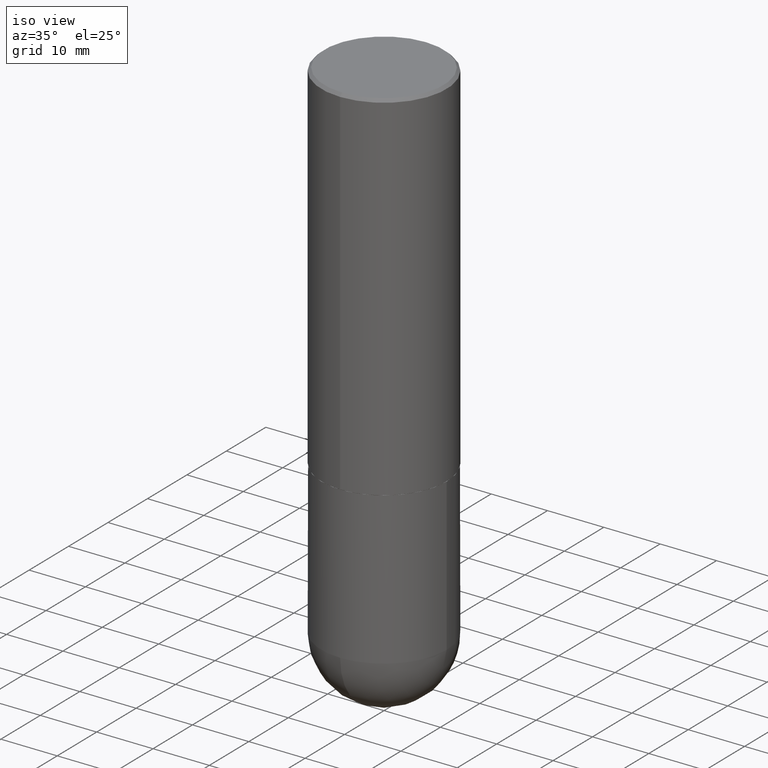
[diagram: clean part render]
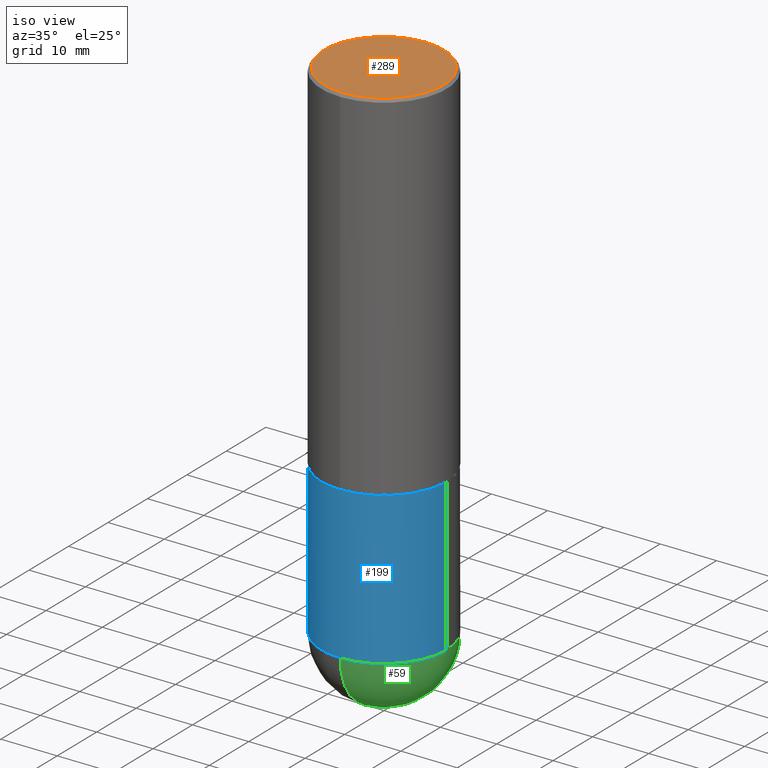
[diagram: same view with three faces highlighted in distinct colors, each labeled with its STEP entity id]
A machine part, iso view with three faces highlighted in distinct colors.
Their STEP definitions:

[orange] entity #289 — the highlighted planar face has unit normal (0, -0, -1).
#6 = FACE_OUTER_BOUND ( 'NONE', #88, .T. ) ;
#14 = CARTESIAN_POINT ( 'NONE',  ( -2.932862894047327755E-15, -0.4174999999999996492, 1.722209210515538921E-15 ) ) ;
#18 = AXIS2_PLACEMENT_3D ( 'NONE', #37, #70, #102 ) ;
#37 = CARTESIAN_POINT ( 'NONE',  ( 2.915386917934013512E-15, 0.4174999999999996492, -1.325336566064474689E-15 ) ) ;
#49 = ORIENTED_EDGE ( 'NONE', *, *, #385, .T. ) ;
#67 = AXIS2_PLACEMENT_3D ( 'NONE', #307, #127, #376 ) ;
#70 = DIRECTION ( 'NONE',  ( 2.445579214634028631E-29, -3.491323227660273177E-15, -1.000000000000000000 ) ) ;
#79 = ORIENTED_EDGE ( 'NONE', *, *, #344, .T. ) ;
#88 = EDGE_LOOP ( 'NONE', ( #49, #79 ) ) ;
#90 = AXIS2_PLACEMENT_3D ( 'NONE', #343, #93, #314 ) ;
#93 = DIRECTION ( 'NONE',  ( -2.445579214634029192E-29, 3.491323227660272783E-15, 1.000000000000000000 ) ) ;
#102 = DIRECTION ( 'NONE',  ( 6.982962677686265922E-15, 1.000000000000000000, -3.491323227660273177E-15 ) ) ;
#106 = CIRCLE ( 'NONE', #90, 0.4174999999999996492 ) ;
#127 = DIRECTION ( 'NONE',  ( -2.445579214634029192E-29, 3.491323227660272783E-15, 1.000000000000000000 ) ) ;
#258 = PLANE ( 'NONE',  #18 ) ;
#267 = VERTEX_POINT ( 'NONE', #14 ) ;
#288 = CIRCLE ( 'NONE', #67, 0.4174999999999996492 ) ;
#289 = ADVANCED_FACE ( 'NONE', ( #6 ), #258, .F. ) ;
#307 = CARTESIAN_POINT ( 'NONE',  ( -6.470556600842424739E-45, 9.237404546633045447E-31, 2.645817629673760558E-16 ) ) ;
#314 = DIRECTION ( 'NONE',  ( -6.982962677686265922E-15, -1.000000000000000000, 3.491323227660273177E-15 ) ) ;
#343 = CARTESIAN_POINT ( 'NONE',  ( -6.470556600842424739E-45, 9.237404546633045447E-31, 2.645817629673760558E-16 ) ) ;
#344 = EDGE_CURVE ( 'NONE', #267, #410, #288, .T. ) ;
#376 = DIRECTION ( 'NONE',  ( -6.982962677686265922E-15, -1.000000000000000000, 3.491323227660273177E-15 ) ) ;
#385 = EDGE_CURVE ( 'NONE', #410, #267, #106, .T. ) ;
#403 = CARTESIAN_POINT ( 'NONE',  ( 2.985216544710877599E-15, 0.4174999999999996492, -1.193045684580786612E-15 ) ) ;
#410 = VERTEX_POINT ( 'NONE', #403 ) ;

[blue] entity #199 — the highlighted cylindrical surface (partial cylindrical patch) has radius 11.1125 mm, axis along (-0, 0, 1).
#3 = DIRECTION ( 'NONE',  ( -2.445468806185136597E-29, 3.491481338843145583E-15, 1.000000000000000000 ) ) ;
#16 = CARTESIAN_POINT ( 'NONE',  ( -0.4375000000000000000, -7.474928339417847141E-15, -2.500000000000000000 ) ) ;
#27 = VERTEX_POINT ( 'NONE', #283 ) ;
#54 = VECTOR ( 'NONE', #232, 39.37007874015748143 ) ;
#55 = CARTESIAN_POINT ( 'NONE',  ( 8.711982622034549126E-29, -1.243840226962870597E-14, -3.562500000000000000 ) ) ;
#60 = DIRECTION ( 'NONE',  ( 1.000000000000000000, -6.982962677686265133E-15, 0.000000000000000000 ) ) ;
#87 = CARTESIAN_POINT ( 'NONE',  ( -3.108624468950352327E-15, -0.4375000000000127676, -3.562499999999998224 ) ) ;
#111 = ORIENTED_EDGE ( 'NONE', *, *, #152, .F. ) ;
#131 = CARTESIAN_POINT ( 'NONE',  ( 6.113672015462842613E-29, -8.728703347107864943E-15, -2.500000000000000000 ) ) ;
#132 = CIRCLE ( 'NONE', #360, 0.4374999999999998890 ) ;
#135 = CARTESIAN_POINT ( 'NONE',  ( 8.711982622034549126E-29, -1.243840226962870597E-14, -3.562500000000000000 ) ) ;
#138 = CARTESIAN_POINT ( 'NONE',  ( 0.4374999999999998890, -3.055046171487740897E-15, 2.133327339410721209E-29 ) ) ;
#146 = CARTESIAN_POINT ( 'NONE',  ( 0.4375000000000000000, -1.178374951859560505E-14, -2.500000000000000000 ) ) ;
#152 = EDGE_CURVE ( 'NONE', #370, #241, #400, .T. ) ;
#167 = CARTESIAN_POINT ( 'NONE',  ( 0.000000000000000000, 0.000000000000000000, 0.000000000000000000 ) ) ;
#172 = DIRECTION ( 'NONE',  ( 1.000000000000000000, -6.982962677686265133E-15, 0.000000000000000000 ) ) ;
#175 = AXIS2_PLACEMENT_3D ( 'NONE', #131, #3, #253 ) ;
#176 = VERTEX_POINT ( 'NONE', #319 ) ;
#181 = CARTESIAN_POINT ( 'NONE',  ( -0.4374999999999998890, 3.108624468950437524E-15, -2.152034101986520964E-29 ) ) ;
#196 = EDGE_LOOP ( 'NONE', ( #364, #309, #336, #332, #111 ) ) ;
#199 = ADVANCED_FACE ( 'NONE', ( #387 ), #354, .T. ) ;
#208 = LINE ( 'NONE', #138, #54 ) ;
#226 = EDGE_CURVE ( 'NONE', #176, #241, #208, .T. ) ;
#232 = DIRECTION ( 'NONE',  ( -2.445468806185136877E-29, 3.491481338843145188E-15, 1.000000000000000000 ) ) ;
#234 = CIRCLE ( 'NONE', #328, 0.4374999999999998890 ) ;
#241 = VERTEX_POINT ( 'NONE', #146 ) ;
#253 = DIRECTION ( 'NONE',  ( 1.000000000000000000, -6.982962677686265133E-15, 0.000000000000000000 ) ) ;
#259 = DIRECTION ( 'NONE',  ( -2.445468806185136597E-29, 3.491481338843145583E-15, 1.000000000000000000 ) ) ;
#260 = AXIS2_PLACEMENT_3D ( 'NONE', #167, #269, #335 ) ;
#269 = DIRECTION ( 'NONE',  ( -2.445468806185136597E-29, 3.491481338843145583E-15, 1.000000000000000000 ) ) ;
#283 = CARTESIAN_POINT ( 'NONE',  ( -0.4374999999999998890, -7.474928339417851874E-15, -3.562500000000000000 ) ) ;
#298 = EDGE_CURVE ( 'NONE', #393, #176, #132, .T. ) ;
#305 = LINE ( 'NONE', #181, #380 ) ;
#309 = ORIENTED_EDGE ( 'NONE', *, *, #331, .T. ) ;
#319 = CARTESIAN_POINT ( 'NONE',  ( 0.4374999999999998890, -1.363859897985603030E-14, -3.562500000000000000 ) ) ;
#328 = AXIS2_PLACEMENT_3D ( 'NONE', #55, #372, #60 ) ;
#331 = EDGE_CURVE ( 'NONE', #27, #393, #234, .T. ) ;
#332 = ORIENTED_EDGE ( 'NONE', *, *, #226, .T. ) ;
#335 = DIRECTION ( 'NONE',  ( 1.000000000000000000, -6.982962677686266711E-15, 4.876176775795935232E-29 ) ) ;
#336 = ORIENTED_EDGE ( 'NONE', *, *, #298, .T. ) ;
#354 = CYLINDRICAL_SURFACE ( 'NONE', #260, 0.4374999999999998890 ) ;
#359 = EDGE_CURVE ( 'NONE', #27, #370, #305, .T. ) ;
#360 = AXIS2_PLACEMENT_3D ( 'NONE', #135, #259, #172 ) ;
#364 = ORIENTED_EDGE ( 'NONE', *, *, #359, .F. ) ;
#370 = VERTEX_POINT ( 'NONE', #16 ) ;
#372 = DIRECTION ( 'NONE',  ( -2.445468806185136597E-29, 3.491481338843145583E-15, 1.000000000000000000 ) ) ;
#374 = DIRECTION ( 'NONE',  ( -2.445468806185136877E-29, 3.491481338843145188E-15, 1.000000000000000000 ) ) ;
#380 = VECTOR ( 'NONE', #374, 39.37007874015748143 ) ;
#387 = FACE_OUTER_BOUND ( 'NONE', #196, .T. ) ;
#393 = VERTEX_POINT ( 'NONE', #87 ) ;
#400 = CIRCLE ( 'NONE', #175, 0.4375000000000000000 ) ;

[green] entity #59 — the highlighted spherical surface has radius 11.1125 mm.
#1 = AXIS2_PLACEMENT_3D ( 'NONE', #284, #373, #382 ) ;
#17 = ORIENTED_EDGE ( 'NONE', *, *, #298, .F. ) ;
#25 = AXIS2_PLACEMENT_3D ( 'NONE', #28, #287, #164 ) ;
#28 = CARTESIAN_POINT ( 'NONE',  ( 8.380862844120662879E-29, -1.291258463776875784E-14, -3.562500000000000000 ) ) ;
#29 = EDGE_CURVE ( 'NONE', #176, #338, #358, .T. ) ;
#30 = CARTESIAN_POINT ( 'NONE',  ( 8.711982622034549126E-29, -1.243840226962870597E-14, -3.562500000000000000 ) ) ;
#57 = CARTESIAN_POINT ( 'NONE',  ( 8.380862844120662879E-29, -1.291258463776875784E-14, -3.562500000000000000 ) ) ;
#59 = ADVANCED_FACE ( 'NONE', ( #247 ), #348, .T. ) ;
#82 = ORIENTED_EDGE ( 'NONE', *, *, #115, .F. ) ;
#87 = CARTESIAN_POINT ( 'NONE',  ( -3.108624468950352327E-15, -0.4375000000000127676, -3.562499999999998224 ) ) ;
#115 = EDGE_CURVE ( 'NONE', #245, #393, #352, .T. ) ;
#116 = CIRCLE ( 'NONE', #183, 0.4375000000000001665 ) ;
#121 = ORIENTED_EDGE ( 'NONE', *, *, #29, .F. ) ;
#122 = CARTESIAN_POINT ( 'NONE',  ( 3.055046171487827277E-15, 0.4374999999999873435, -3.562500000000001776 ) ) ;
#132 = CIRCLE ( 'NONE', #360, 0.4374999999999998890 ) ;
#135 = CARTESIAN_POINT ( 'NONE',  ( 8.711982622034549126E-29, -1.243840226962870597E-14, -3.562500000000000000 ) ) ;
#164 = DIRECTION ( 'NONE',  ( -7.105427357601001070E-15, -1.000000000000000000, 0.000000000000000000 ) ) ;
#165 = DIRECTION ( 'NONE',  ( 1.000000000000000000, -6.982962677686265133E-15, 0.000000000000000000 ) ) ;
#172 = DIRECTION ( 'NONE',  ( 1.000000000000000000, -6.982962677686265133E-15, 0.000000000000000000 ) ) ;
#176 = VERTEX_POINT ( 'NONE', #319 ) ;
#178 = ORIENTED_EDGE ( 'NONE', *, *, #317, .T. ) ;
#183 = AXIS2_PLACEMENT_3D ( 'NONE', #57, #312, #188 ) ;
#188 = DIRECTION ( 'NONE',  ( 6.982962677686265922E-15, 1.000000000000000000, 0.000000000000000000 ) ) ;
#220 = DIRECTION ( 'NONE',  ( -2.445468806185136597E-29, 3.491481338843145583E-15, 1.000000000000000000 ) ) ;
#245 = VERTEX_POINT ( 'NONE', #290 ) ;
#247 = FACE_OUTER_BOUND ( 'NONE', #361, .T. ) ;
#259 = DIRECTION ( 'NONE',  ( -2.445468806185136597E-29, 3.491481338843145583E-15, 1.000000000000000000 ) ) ;
#284 = CARTESIAN_POINT ( 'NONE',  ( 8.380862844120662879E-29, -1.291258463776875784E-14, -3.562500000000000000 ) ) ;
#287 = DIRECTION ( 'NONE',  ( -1.000000000000000000, 7.105427357601001070E-15, -4.926315508542082329E-29 ) ) ;
#290 = CARTESIAN_POINT ( 'NONE',  ( 9.469462209402459055E-29, -1.441331857478128510E-14, -4.000000000000000000 ) ) ;
#298 = EDGE_CURVE ( 'NONE', #393, #176, #132, .T. ) ;
#312 = DIRECTION ( 'NONE',  ( 1.000000000000000000, -6.982962677686265922E-15, 4.883557194083112340E-29 ) ) ;
#317 = EDGE_CURVE ( 'NONE', #245, #338, #116, .T. ) ;
#319 = CARTESIAN_POINT ( 'NONE',  ( 0.4374999999999998890, -1.363859897985603030E-14, -3.562500000000000000 ) ) ;
#338 = VERTEX_POINT ( 'NONE', #122 ) ;
#348 = SPHERICAL_SURFACE ( 'NONE', #1, 0.4375000000000001665 ) ;
#352 = CIRCLE ( 'NONE', #25, 0.4375000000000001665 ) ;
#358 = CIRCLE ( 'NONE', #390, 0.4374999999999998890 ) ;
#360 = AXIS2_PLACEMENT_3D ( 'NONE', #135, #259, #172 ) ;
#361 = EDGE_LOOP ( 'NONE', ( #82, #178, #121, #17 ) ) ;
#373 = DIRECTION ( 'NONE',  ( -1.000000000000000000, 6.982962677686265922E-15, -4.883557194083112340E-29 ) ) ;
#382 = DIRECTION ( 'NONE',  ( 6.982962677686265922E-15, 1.000000000000000000, -3.746534391310987979E-15 ) ) ;
#390 = AXIS2_PLACEMENT_3D ( 'NONE', #30, #220, #165 ) ;
#393 = VERTEX_POINT ( 'NONE', #87 ) ;